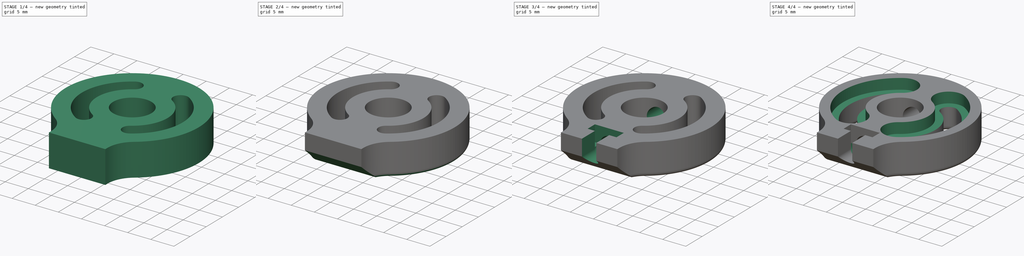
[diagram: build sequence overview — one tinted view per stage of 4, left to right]
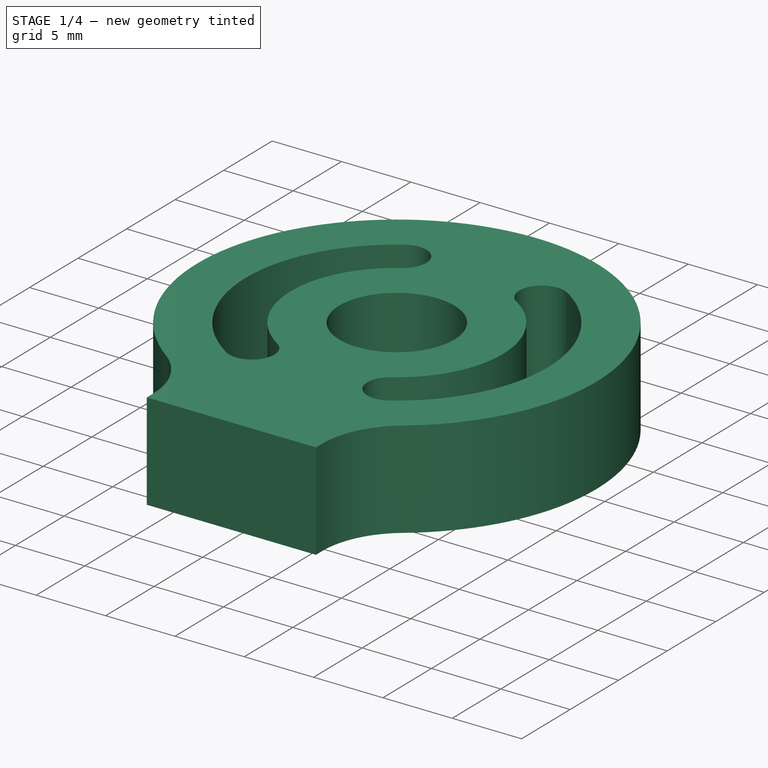
[diagram: stage 1 of 4 — iso view after this stage's code; geometry added in this stage tinted green]
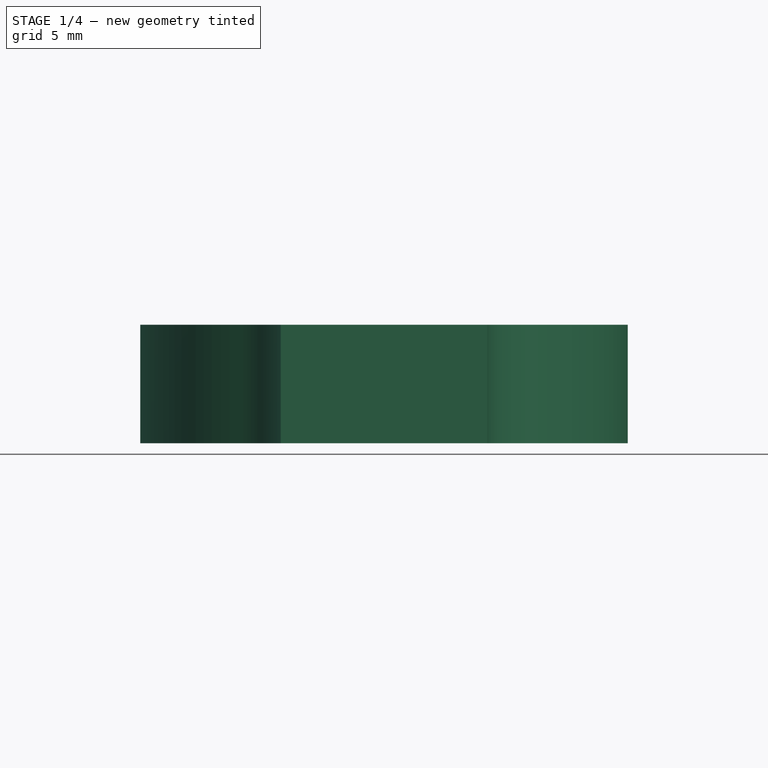
[diagram: stage 1 of 4 — front view after this stage's code; geometry added in this stage tinted green]
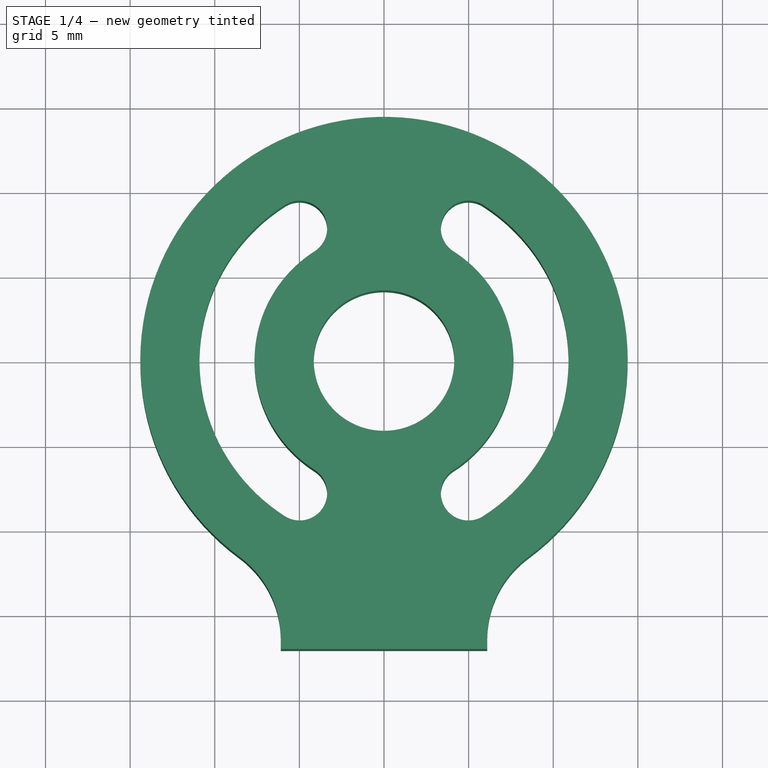
[diagram: stage 1 of 4 — top view after this stage's code; geometry added in this stage tinted green]
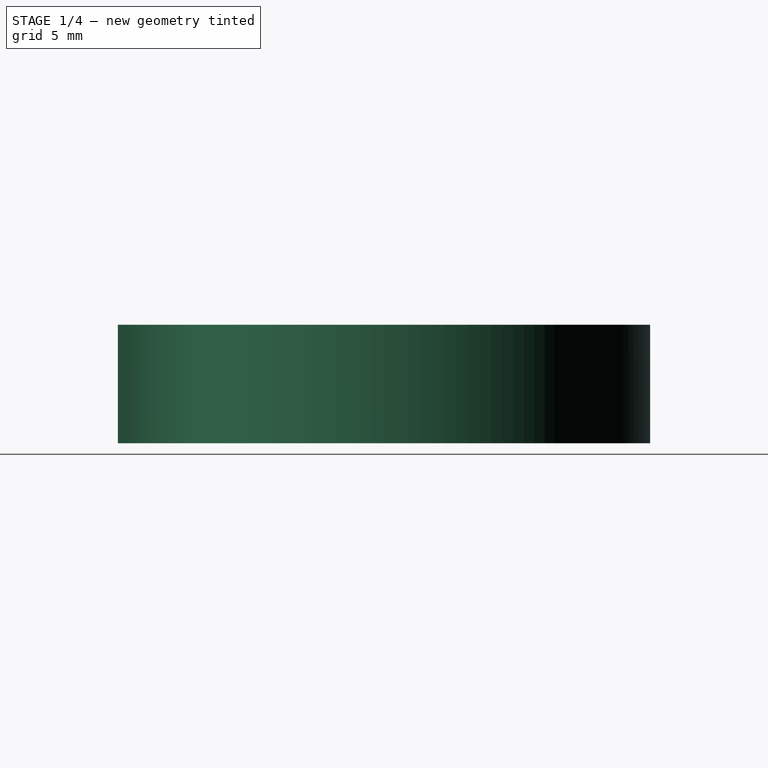
[diagram: stage 1 of 4 — right view after this stage's code; geometry added in this stage tinted green]
FCSTD DOCUMENT  (FreeCAD 0.16RUnknown)
Label: joint-head-screws.011.1
License: All rights reserved
LicenseURL: http://en.wikipedia.org/wiki/All_rights_reserved
objects: Sketcher::SketchObject×7, PartDesign::Pocket×6, Part::Fillet×2, Part::Extrusion×1
note: 22 computed .brp shape members not serialized (recipe doc carries the construction recipe); baked Part::Feature solids carry a one-line shape summary decoded from their .brp

FEATURE [Sketcher::SketchObject] Sketch
  sketch-geometry (29):
    g0: Circle CenterX=0 CenterY=0 CenterZ=0 NormalX=0 NormalY=0 NormalZ=1 Radius=4.15
    g1: ArcOfCircle CenterX=0 CenterY=0 CenterZ=0 NormalX=0 NormalY=0 NormalZ=1 Radius=7.65 StartAngle=2.13803 EndAngle=4.14516
    g2: ArcOfCircle CenterX=0 CenterY=0 CenterZ=0 NormalX=0 NormalY=0 NormalZ=1 Radius=10.9 StartAngle=2.13803 EndAngle=4.14516
    g3: ArcOfCircle CenterX=0 CenterY=0 CenterZ=0 NormalX=0 NormalY=0 NormalZ=1 Radius=7.65 StartAngle=5.27962 EndAngle=7.28675
    g4: ArcOfCircle CenterX=0 CenterY=0 CenterZ=0 NormalX=0 NormalY=0 NormalZ=1 Radius=10.9 StartAngle=5.27962 EndAngle=7.28675
    g5: ArcOfCircle [constr] CenterX=0 CenterY=0 CenterZ=0 NormalX=0 NormalY=0 NormalZ=1 Radius=7.65 StartAngle=1.00356 EndAngle=2.13803
    g6: ArcOfCircle [constr] CenterX=0 CenterY=0 CenterZ=0 NormalX=0 NormalY=0 NormalZ=1 Radius=10.9 StartAngle=1.00356 EndAngle=2.13803
    g7: ArcOfCircle [constr] CenterX=0 CenterY=0 CenterZ=0 NormalX=0 NormalY=0 NormalZ=1 Radius=7.65 StartAngle=4.14516 EndAngle=5.27962
    g8: ArcOfCircle [constr] CenterX=0 CenterY=0 CenterZ=0 NormalX=0 NormalY=0 NormalZ=1 Radius=10.9 StartAngle=4.14516 EndAngle=5.27962
    g9: ArcOfCircle CenterX=0 CenterY=0 CenterZ=0 NormalX=0 NormalY=0 NormalZ=1 Radius=14.4 StartAngle=5.14982 EndAngle=10.5581
    g10: LineSegment [constr] StartX=-5.85657 StartY=-9.19297 StartZ=0 EndX=-4.11034 EndY=-6.45194 EndZ=0
    g11: LineSegment [constr] StartX=-4.11034 StartY=-6.45194 StartZ=0 EndX=0 EndY=0 EndZ=0
    g12: LineSegment [constr] StartX=0 StartY=0 StartZ=0 EndX=4.11034 EndY=6.45194 EndZ=0
    g13: LineSegment [constr] StartX=4.11034 StartY=6.45194 StartZ=0 EndX=5.85657 EndY=9.19297 EndZ=0
    g14: LineSegment [constr] StartX=-7.73711 StartY=12.1448 StartZ=0 EndX=-5.85657 EndY=9.19297 EndZ=0
    g15: LineSegment [constr] StartX=-5.85657 StartY=9.19297 StartZ=0 EndX=-4.11034 EndY=6.45194 EndZ=0
    g16: LineSegment [constr] StartX=-4.11034 StartY=6.45194 StartZ=0 EndX=-2.22979 EndY=3.50007 EndZ=0
    g17: LineSegment [constr] StartX=-2.22979 StartY=3.50007 StartZ=0 EndX=0 EndY=0 EndZ=0
    g18: LineSegment [constr] StartX=0 StartY=0 StartZ=0 EndX=4.11034 EndY=-6.45194 EndZ=0
    g19: LineSegment [constr] StartX=4.11034 StartY=-6.45194 StartZ=0 EndX=5.85657 EndY=-9.19297 EndZ=0
    g20: LineSegment [constr] StartX=-5.85657 StartY=-9.19297 StartZ=0 EndX=5.85657 EndY=-9.19297 EndZ=0
    g21: LineSegment StartX=-6.1 StartY=-17.0442 StartZ=0 EndX=6.1 EndY=-17.0442 EndZ=0
    g22: LineSegment StartX=6.1 StartY=-17.0442 StartZ=0 EndX=6.1 EndY=-13.0442 EndZ=0
    g23: LineSegment [constr] StartX=6.1 StartY=-13.0442 StartZ=0 EndX=-6.1 EndY=-13.0442 EndZ=0
    g24: LineSegment StartX=-6.1 StartY=-13.0442 StartZ=0 EndX=-6.1 EndY=-17.0442 EndZ=0
    g25: ArcOfCircle CenterX=-4.98345 CenterY=-7.82246 CenterZ=0 NormalX=0 NormalY=0 NormalZ=1 Radius=1.625 StartAngle=4.14516 EndAngle=7.28675
    g26: ArcOfCircle CenterX=4.98345 CenterY=-7.82246 CenterZ=0 NormalX=0 NormalY=0 NormalZ=1 Radius=1.625 StartAngle=2.13803 EndAngle=5.27962
    g27: ArcOfCircle CenterX=-4.98345 CenterY=7.82246 CenterZ=0 NormalX=0 NormalY=0 NormalZ=1 Radius=1.625 StartAngle=5.27962 EndAngle=8.42121
    g28: ArcOfCircle CenterX=4.98345 CenterY=7.82246 CenterZ=0 NormalX=0 NormalY=0 NormalZ=1 Radius=1.625 StartAngle=1.00356 EndAngle=4.14516
  constraints (80):
    c: Coincident(g0,g-1)
    c: Radius(g0) = 4.15
    c: Coincident(g0,g1)
    c: Coincident(g0,g2)
    c: Coincident(g0,g3)
    c: Coincident(g0,g4)
    c: Coincident(g0,g5)
    c: Coincident(g0,g6)
    c: Coincident(g0,g7)
    c: Coincident(g0,g8)
    c: Coincident(g1,g5)
    c: Coincident(g2,g6)
    c: Coincident(g4,g6)
    c: Coincident(g3,g5)
    c: Coincident(g3,g7)
    c: Coincident(g1,g7)
    c: Coincident(g2,g8)
    c: Coincident(g4,g8)
    c: Coincident(g0,g9)
    c: Coincident(g10,g11)
    c: Coincident(g11,g12)
    c: Coincident(g12,g13)
    c: Coincident(g14,g15)
    c: Coincident(g15,g16)
    c: Coincident(g16,g17)
    c: Coincident(g17,g18)
    c: Coincident(g18,g19)
    c: Coincident(g0,g11)
    c: Coincident(g0,g17)
    c: PointOnObject(g16,g0)
    c: PointOnObject(g14,g9)
    c: Coincident(g2,g14)
    c: Coincident(g1,g15)
    c: Coincident(g3,g12)
    c: Coincident(g4,g13)
    c: Coincident(g1,g10)
    c: Coincident(g2,g10)
    c: Coincident(g3,g18)
    c: Coincident(g4,g19)
    c: Parallel(g10,g11)
    c: Parallel(g11,g12)
    c: Parallel(g12,g13)
    c: Parallel(g14,g15)
    c: Parallel(g15,g16)
    c: Parallel(g16,g17)
    c: Parallel(g17,g18)
    c: Parallel(g18,g19)
    c: Horizontal(g20)
    c: Coincident(g4,g20)
    c: Coincident(g2,g20)
    c: Angle(g12,g17) = 1.13446
    c: Equal(g16,g14)
    c: Distance(g15) = 3.25
    c: Distance(g14) = 3.5
    c: Coincident(g21,g22)
    c: Coincident(g24,g21)
    c: Horizontal(g21)
    c: Horizontal(g23)
    c: Vertical(g22)
    c: Vertical(g24)
    c: DistanceY(g22,g23) = 4
    c: DistanceX(g21,g21) = 12.2
    c: PointOnObject(g24,g9)
    c: PointOnObject(g23,g9)
    c: Coincident(g9,g22)
    c: Coincident(g9,g23)
    c: Coincident(g9,g24)
    c: Coincident(g9,g23)
    c: Coincident(g4,g28)
    c: Coincident(g3,g28)
    c: Coincident(g1,g27)
    c: Coincident(g2,g27)
    c: PointOnObject(g27,g15)
    c: PointOnObject(g28,g13)
    c: Coincident(g1,g25)
    c: Coincident(g2,g25)
    c: PointOnObject(g25,g10)
    c: Coincident(g3,g26)
    c: Coincident(g4,g26)
    c: PointOnObject(g26,g19)
FEATURE [Part::Extrusion] Extrude
  Base = -> Sketch
  Dir = (0,0,7)
  Solid = true
FEATURE [Part::Fillet] Fillet
  Base = -> Extrude
  Edges = 2 edges r=6: [Edge1,Edge2]
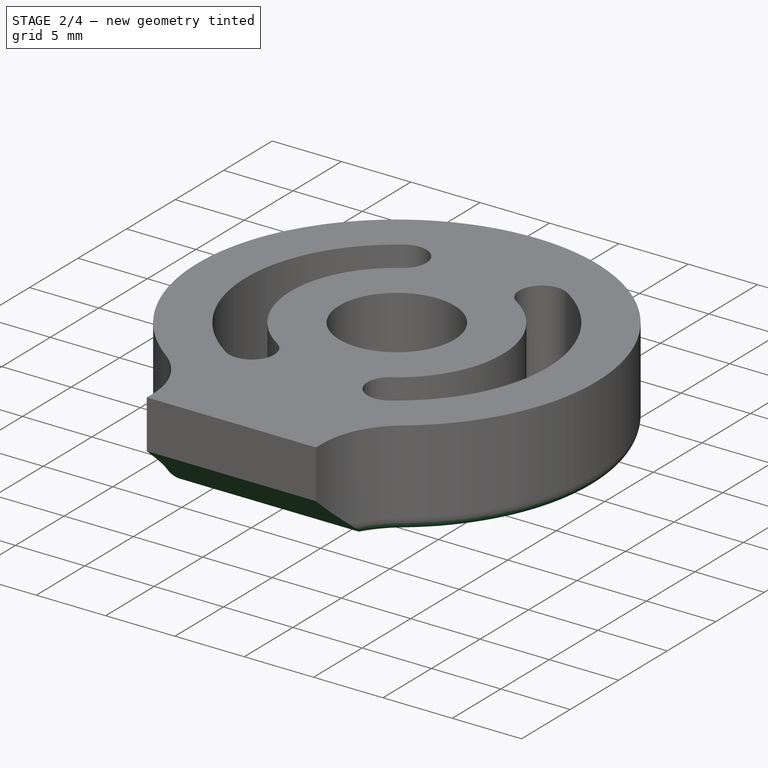
[diagram: stage 2 of 4 — iso view after this stage's code; geometry added in this stage tinted green]
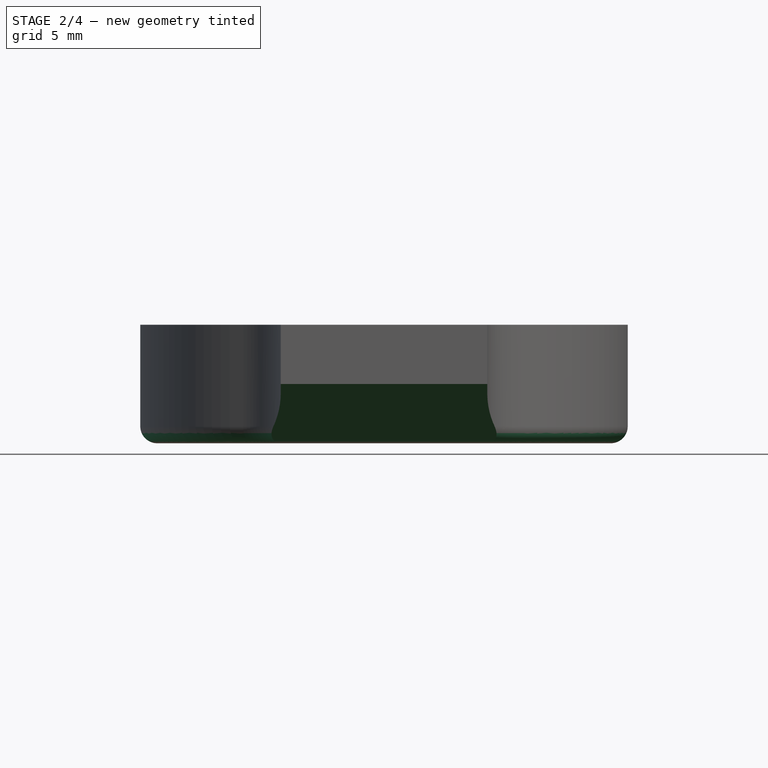
[diagram: stage 2 of 4 — front view after this stage's code; geometry added in this stage tinted green]
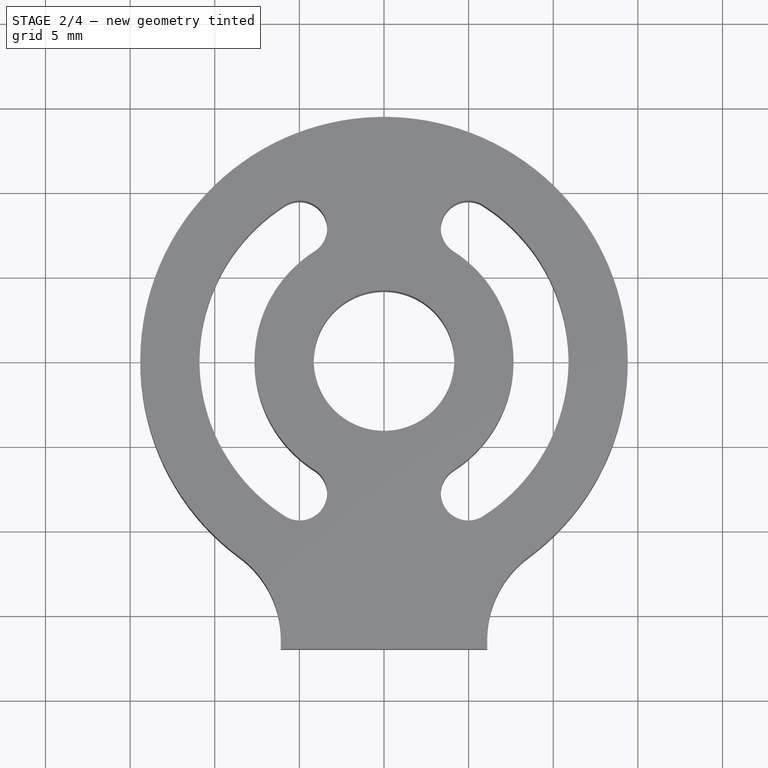
[diagram: stage 2 of 4 — top view after this stage's code; geometry added in this stage tinted green]
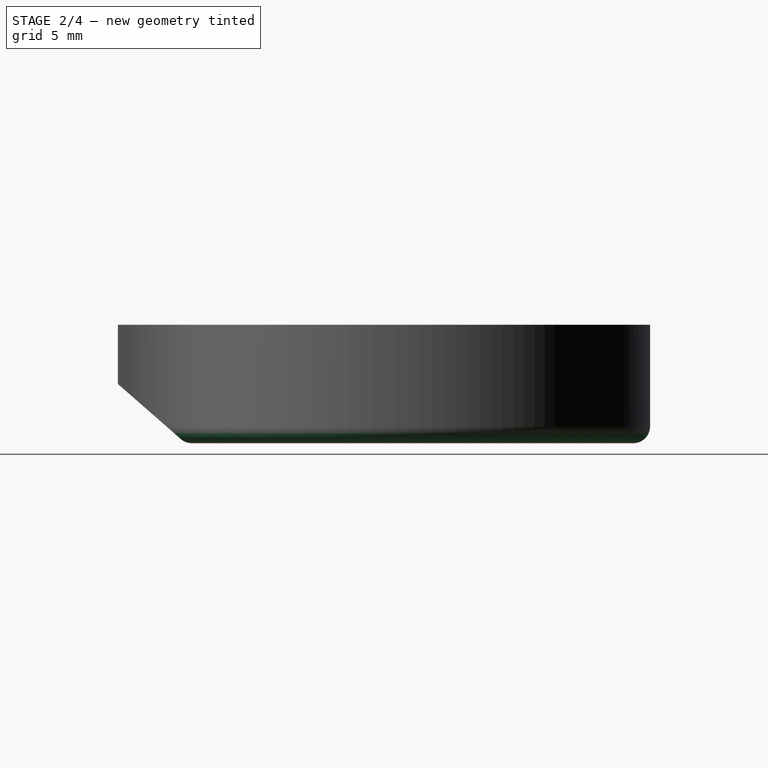
[diagram: stage 2 of 4 — right view after this stage's code; geometry added in this stage tinted green]
FEATURE [Sketcher::SketchObject] Sketch001
  ExternalGeometry = -> [Fillet]
  Placement = pos=(6.1,0,0) rot=(0.57735,0.57735,0.57735;2.0944rad)
  Support = -> Fillet [Face6]
  sketch-geometry (4):
    g0: LineSegment [constr] StartX=-17.0442 StartY=7 StartZ=0 EndX=-17.0442 EndY=3.5 EndZ=0
    g1: LineSegment StartX=-17.0442 StartY=3.5 StartZ=0 EndX=-17.0442 EndY=0 EndZ=0
    g2: LineSegment StartX=-17.0442 StartY=0 StartZ=0 EndX=-13.0442 EndY=0 EndZ=0
    g3: LineSegment StartX=-13.0442 StartY=0 StartZ=0 EndX=-17.0442 EndY=3.5 EndZ=0
  constraints (11):
    c: Vertical(g0)
    c: Coincident(g0,g1)
    c: Vertical(g1)
    c: Coincident(g1,g2)
    c: Horizontal(g2)
    c: Coincident(g2,g3)
    c: Coincident(g0,g3)
    c: Equal(g0,g1)
    c: Coincident(g0,g-3)
    c: Coincident(g1,g-3)
    c: DistanceX(g2,g2) = 4
FEATURE [PartDesign::Pocket] Pocket
  Length = 5
  Midplane = true
  Sketch = -> Sketch001
  Type = 1
FEATURE [Part::Fillet] Fillet001
  Base = -> Pocket
  Edges = 13 edges r=1: [Edge1,Edge5,Edge6,Edge7,Edge8,Edge9,Edge10,Edge11,Edge12,Edge13,Edge14,Edge15,Edge16]
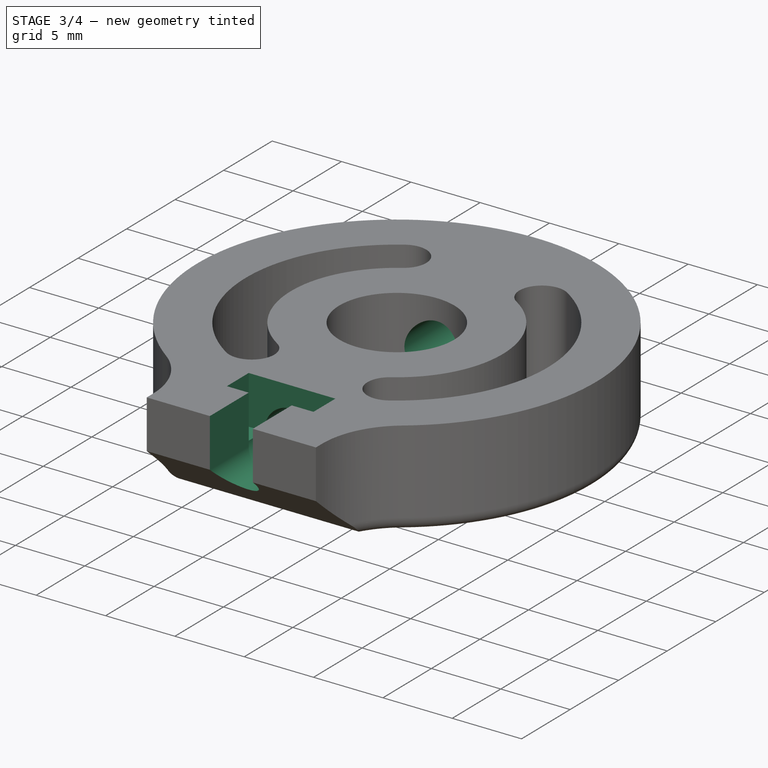
[diagram: stage 3 of 4 — iso view after this stage's code; geometry added in this stage tinted green]
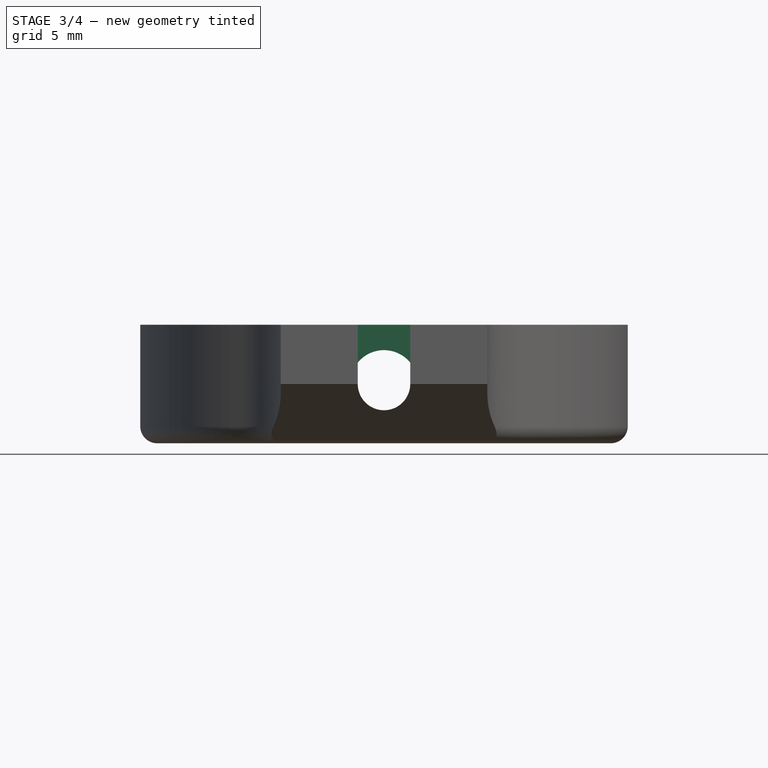
[diagram: stage 3 of 4 — front view after this stage's code; geometry added in this stage tinted green]
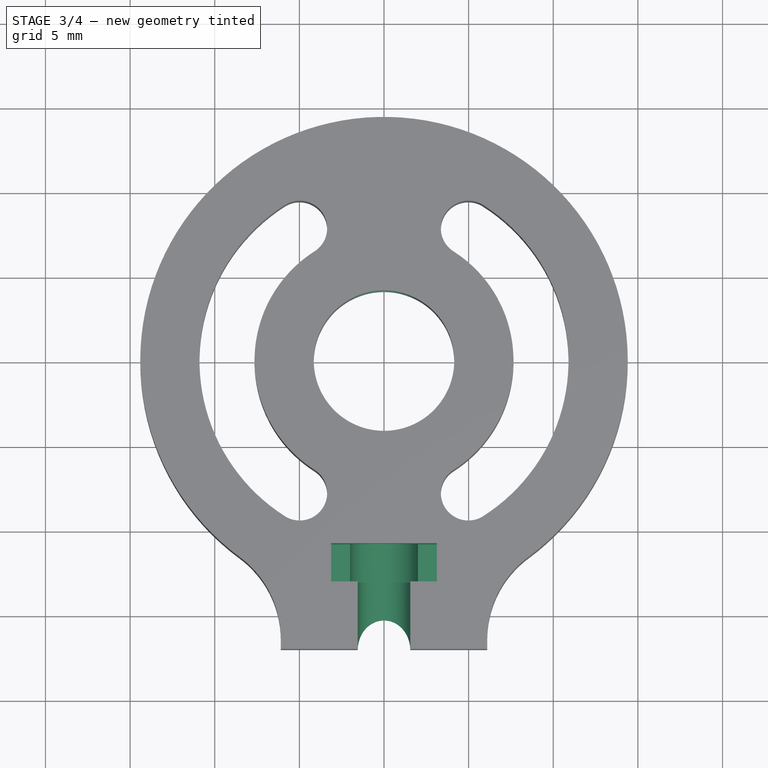
[diagram: stage 3 of 4 — top view after this stage's code; geometry added in this stage tinted green]
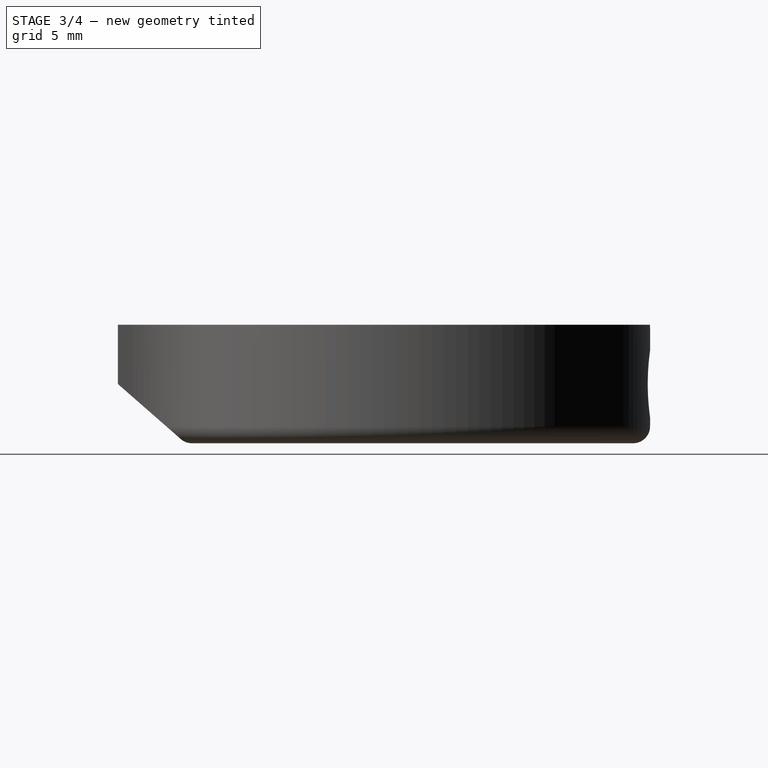
[diagram: stage 3 of 4 — right view after this stage's code; geometry added in this stage tinted green]
FEATURE [Sketcher::SketchObject] Sketch002
  ExternalGeometry = -> [Fillet001]
  Placement = pos=(0,-17.0442,0) rot=(1,0,0;1.5708rad)
  Support = -> Fillet001 [Face12]
  sketch-geometry (1):
    g0: Circle CenterX=0 CenterY=3.5 CenterZ=0 NormalX=0 NormalY=0 NormalZ=1 Radius=1.55
  constraints (3):
    c: PointOnObject(g0,g-3)
    c: PointOnObject(g0,g-2)
    c: Radius(g0) = 1.55
FEATURE [PartDesign::Pocket] Pocket001
  Length = 4
  Sketch = -> Sketch002
  Type = 0
FEATURE [Sketcher::SketchObject] Sketch003
  ExternalGeometry = -> [Pocket001]
  Placement = pos=(0,-13.0442,0) rot=(1,0,0;1.5708rad)
  Support = -> Pocket001 [Face33]
  sketch-geometry (1):
    g0: Circle CenterX=0 CenterY=3.5 CenterZ=0 NormalX=0 NormalY=0 NormalZ=1 Radius=2
  constraints (2):
    c: Coincident(g0,g-3)
    c: Radius(g0) = 2
FEATURE [PartDesign::Pocket] Pocket002
  Length = 5
  Sketch = -> Sketch003
  Type = 1
FEATURE [Sketcher::SketchObject] Sketch004
  ExternalGeometry = -> [Pocket002]
  Placement = pos=(0,0,7) rot=(0,0,1;0rad)
  Support = -> Pocket002 [Face4]
  sketch-geometry (10):
    g0: LineSegment StartX=-3.125 StartY=-10.7942 StartZ=0 EndX=3.125 EndY=-10.7942 EndZ=0
    g1: LineSegment StartX=3.125 StartY=-10.7942 StartZ=0 EndX=3.125 EndY=-13.0442 EndZ=0
    g2: LineSegment StartX=3.125 StartY=-13.0442 StartZ=0 EndX=1.55 EndY=-13.0442 EndZ=0
    g3: LineSegment StartX=1.55 StartY=-13.0442 StartZ=0 EndX=1.55 EndY=-17.0442 EndZ=0
    g4: LineSegment StartX=1.55 StartY=-17.0442 StartZ=0 EndX=-1.55 EndY=-17.0442 EndZ=0
    g5: LineSegment StartX=-1.55 StartY=-17.0442 StartZ=0 EndX=-1.55 EndY=-13.0442 EndZ=0
    g6: LineSegment StartX=-1.55 StartY=-13.0442 StartZ=0 EndX=-3.125 EndY=-13.0442 EndZ=0
    g7: LineSegment StartX=-3.125 StartY=-13.0442 StartZ=0 EndX=-3.125 EndY=-10.7942 EndZ=0
    g8: LineSegment [constr] StartX=-3.125 StartY=-13.0442 StartZ=0 EndX=0 EndY=-11.9192 EndZ=0
    g9: LineSegment [constr] StartX=0 StartY=-11.9192 StartZ=0 EndX=3.125 EndY=-10.7942 EndZ=0
  constraints (29):
    c: Horizontal(g0)
    c: Coincident(g0,g1)
    c: Vertical(g1)
    c: Coincident(g1,g2)
    c: Horizontal(g2)
    c: Coincident(g2,g3)
    c: Vertical(g3)
    c: Coincident(g3,g4)
    c: Horizontal(g4)
    c: Coincident(g4,g5)
    c: Vertical(g5)
    c: Coincident(g5,g6)
    c: Horizontal(g6)
    c: Coincident(g6,g7)
    c: Vertical(g7)
    c: Coincident(g0,g7)
    c: Equal(g6,g2)
    c: DistanceX(g4,g4) = 3.1
    c: DistanceX(g0,g0) = 6.25
    c: DistanceY(g1,g1) = 2.25
    c: PointOnObject(g4,g-3)
    c: DistanceY(g5,g5) = 4
    c: Equal(g5,g3)
    c: Coincident(g8,g9)
    c: Coincident(g6,g8)
    c: Coincident(g0,g9)
    c: PointOnObject(g8,g-2)
    c: Equal(g8,g9)
    c: Parallel(g8,g9)
FEATURE [PartDesign::Pocket] Pocket003
  Length = 3.5
  Sketch = -> Sketch004
  Type = 0
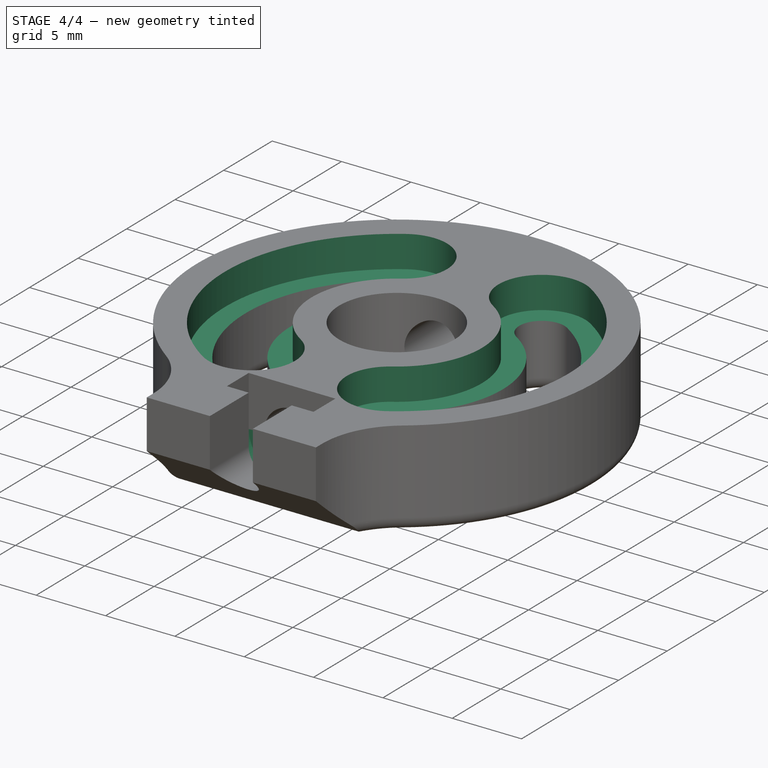
[diagram: stage 4 of 4 — iso view after this stage's code; geometry added in this stage tinted green]
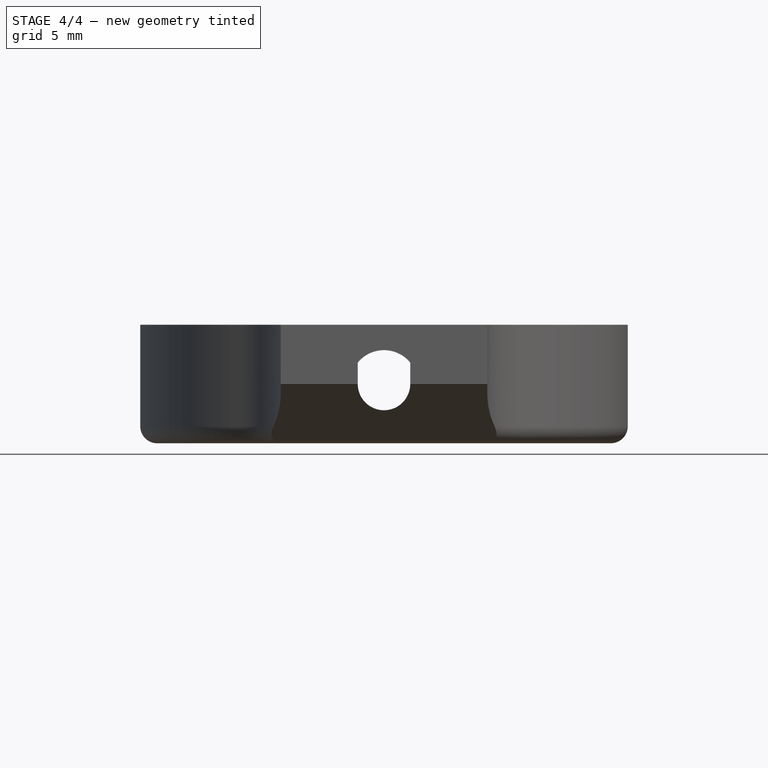
[diagram: stage 4 of 4 — front view after this stage's code; geometry added in this stage tinted green]
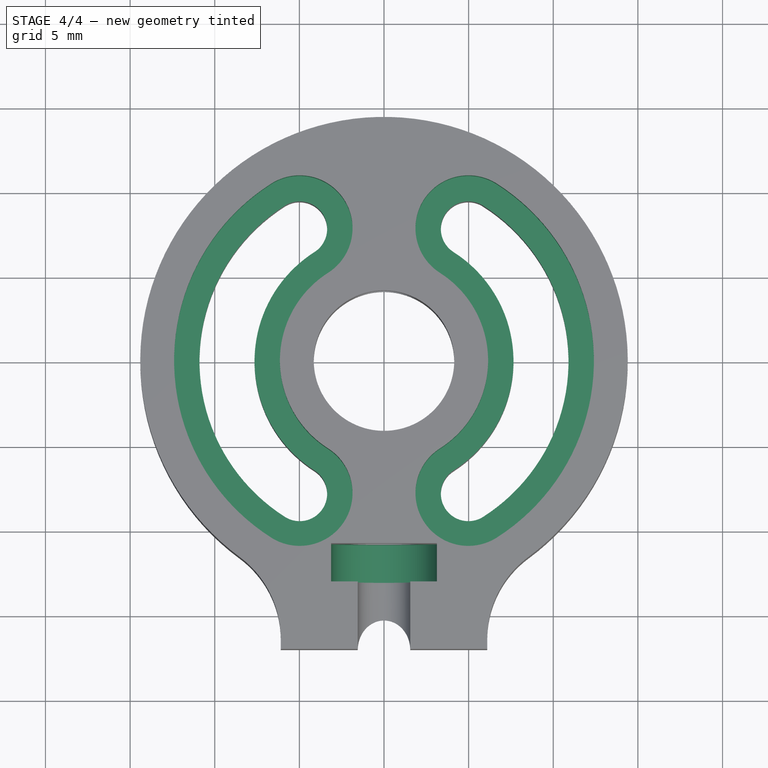
[diagram: stage 4 of 4 — top view after this stage's code; geometry added in this stage tinted green]
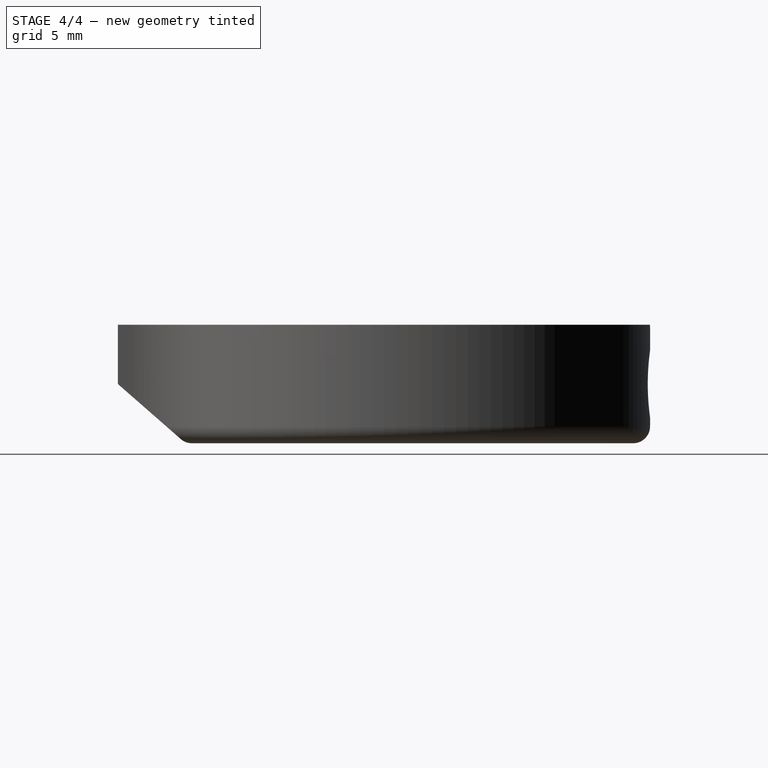
[diagram: stage 4 of 4 — right view after this stage's code; geometry added in this stage tinted green]
FEATURE [Sketcher::SketchObject] Sketch005
  ExternalGeometry = -> [Pocket003]
  Placement = pos=(0,-10.7942,0) rot=(1,0,0;1.5708rad)
  Support = -> Pocket003 [Face16]
  sketch-geometry (2):
    g0: LineSegment StartX=-3.125 StartY=3.5 StartZ=0 EndX=3.125 EndY=3.5 EndZ=0
    g1: ArcOfCircle CenterX=0 CenterY=3.5 CenterZ=0 NormalX=0 NormalY=0 NormalZ=1 Radius=3.125 StartAngle=3.14159 EndAngle=6.28319
  constraints (6):
    c: Horizontal(g0)
    c: Coincident(g0,g1)
    c: Coincident(g0,g-5)
    c: Coincident(g0,g1)
    c: Coincident(g0,g-3)
    c: Coincident(g1,g-4)
FEATURE [PartDesign::Pocket] Pocket004
  Length = 0
  Sketch = -> Sketch005
  Type = 3
  UpToFace = -> Pocket003 [Face18]
FEATURE [Sketcher::SketchObject] Sketch006
  ExternalGeometry = -> [Pocket004]
  Placement = pos=(0,0,7) rot=(0,0,1;0rad)
  Support = -> Pocket004 [Face4]
  sketch-geometry (20):
    g0: LineSegment [constr] StartX=-6.66252 StartY=10.4581 StartZ=0 EndX=-5.85657 EndY=9.19297 EndZ=0
    g1: LineSegment [constr] StartX=-5.85657 StartY=9.19297 StartZ=0 EndX=-4.11034 EndY=6.45194 EndZ=0
    g2: LineSegment [constr] StartX=-4.11034 StartY=6.45194 StartZ=0 EndX=-3.30439 EndY=5.18686 EndZ=0
    g3: LineSegment [constr] StartX=3.30439 StartY=5.18686 StartZ=0 EndX=4.11034 EndY=6.45194 EndZ=0
    g4: LineSegment [constr] StartX=4.11034 StartY=6.45194 StartZ=0 EndX=5.85657 EndY=9.19297 EndZ=0
    g5: LineSegment [constr] StartX=5.85657 StartY=9.19297 StartZ=0 EndX=6.66252 EndY=10.4581 EndZ=0
    g6: LineSegment [constr] StartX=-6.66252 StartY=-10.4581 StartZ=0 EndX=-5.85657 EndY=-9.19297 EndZ=0
    g7: LineSegment [constr] StartX=-5.85657 StartY=-9.19297 StartZ=0 EndX=-4.11034 EndY=-6.45194 EndZ=0
    g8: LineSegment [constr] StartX=-4.11034 StartY=-6.45194 StartZ=0 EndX=-3.30439 EndY=-5.18686 EndZ=0
    g9: LineSegment [constr] StartX=3.30439 StartY=-5.18686 StartZ=0 EndX=4.11034 EndY=-6.45194 EndZ=0
    g10: LineSegment [constr] StartX=4.11034 StartY=-6.45194 StartZ=0 EndX=5.85657 EndY=-9.19297 EndZ=0
    g11: LineSegment [constr] StartX=5.85657 StartY=-9.19297 StartZ=0 EndX=6.66252 EndY=-10.4581 EndZ=0
    g12: ArcOfCircle CenterX=-4.98345 CenterY=7.82246 CenterZ=0 NormalX=0 NormalY=0 NormalZ=1 Radius=3.125 StartAngle=5.27962 EndAngle=8.42121
    g13: ArcOfCircle CenterX=4.98345 CenterY=7.82246 CenterZ=0 NormalX=0 NormalY=0 NormalZ=1 Radius=3.125 StartAngle=1.00356 EndAngle=4.14516
    g14: ArcOfCircle CenterX=-4.98345 CenterY=-7.82246 CenterZ=0 NormalX=0 NormalY=0 NormalZ=1 Radius=3.125 StartAngle=4.14516 EndAngle=7.28675
    g15: ArcOfCircle CenterX=4.98345 CenterY=-7.82246 CenterZ=0 NormalX=0 NormalY=0 NormalZ=1 Radius=3.125 StartAngle=2.13803 EndAngle=5.27962
    g16: ArcOfCircle CenterX=0 CenterY=0 CenterZ=0 NormalX=0 NormalY=0 NormalZ=1 Radius=6.15 StartAngle=2.13803 EndAngle=4.14516
    g17: ArcOfCircle CenterX=0 CenterY=0 CenterZ=0 NormalX=0 NormalY=0 NormalZ=1 Radius=12.4 StartAngle=2.13803 EndAngle=4.14516
    g18: ArcOfCircle CenterX=0 CenterY=0 CenterZ=0 NormalX=0 NormalY=0 NormalZ=1 Radius=6.15 StartAngle=5.27962 EndAngle=7.28675
    g19: ArcOfCircle CenterX=0 CenterY=0 CenterZ=0 NormalX=0 NormalY=0 NormalZ=1 Radius=12.4 StartAngle=5.27962 EndAngle=7.28675
  constraints (52):
    c: Coincident(g0,g1)
    c: Coincident(g1,g2)
    c: Coincident(g3,g4)
    c: Coincident(g4,g5)
    c: Coincident(g6,g7)
    c: Coincident(g7,g8)
    c: Coincident(g9,g10)
    c: Coincident(g10,g11)
    c: Coincident(g10,g-5)
    c: Coincident(g9,g-5)
    c: Coincident(g7,g-4)
    c: Coincident(g6,g-4)
    c: Coincident(g1,g-3)
    c: Coincident(g0,g-3)
    c: Coincident(g3,g-6)
    c: Coincident(g4,g-6)
    c: Parallel(g0,g1)
    c: Parallel(g1,g2)
    c: Parallel(g4,g3)
    c: Parallel(g3,g5)
    c: Parallel(g6,g7)
    c: Parallel(g7,g8)
    c: Parallel(g11,g10)
    c: Parallel(g10,g9)
    c: Equal(g0,g2)
    c: Equal(g3,g5)
    c: Equal(g0,g5)
    c: Coincident(g16,g17)
    c: Coincident(g16,g18)
    c: Coincident(g16,g19)
    c: Coincident(g16,g-1)
    c: Coincident(g2,g12)
    c: Coincident(g2,g16)
    c: Coincident(g0,g12)
    c: Coincident(g0,g17)
    c: Coincident(g6,g14)
    c: Coincident(g6,g17)
    c: Coincident(g8,g14)
    c: Coincident(g8,g16)
    c: Coincident(g9,g15)
    c: Coincident(g9,g18)
    c: Coincident(g11,g15)
    c: Coincident(g11,g19)
    c: Coincident(g3,g13)
    c: Coincident(g3,g18)
    c: Coincident(g5,g13)
    c: Coincident(g5,g19)
    c: PointOnObject(g13,g4)
    c: PointOnObject(g12,g1)
    c: PointOnObject(g14,g7)
    c: PointOnObject(g15,g10)
    c: Distance(g0,g2) = 6.25
FEATURE [PartDesign::Pocket] Pocket005
  Length = 2.3
  Sketch = -> Sketch006
  Type = 0
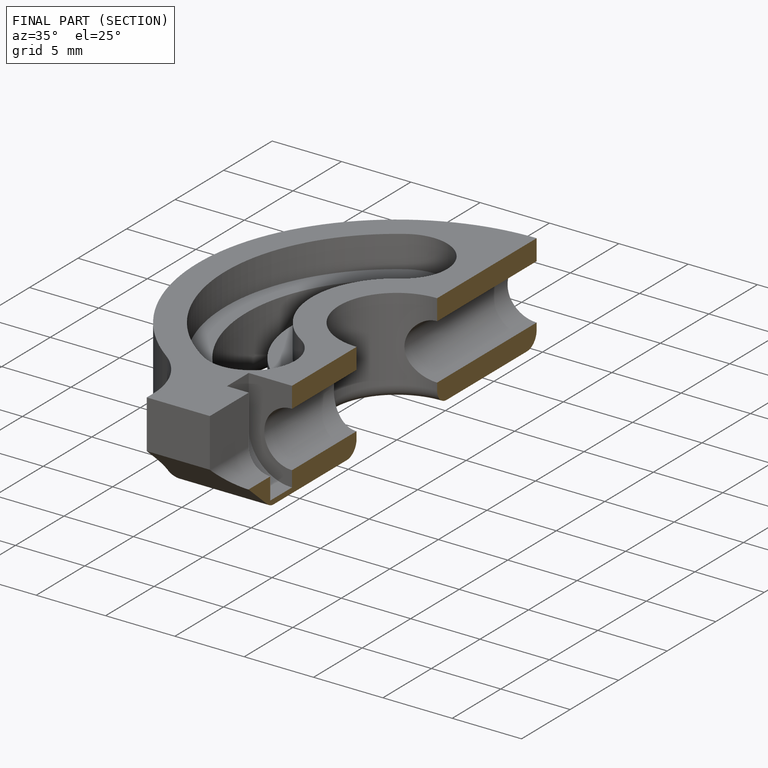
[diagram: finished part — half-section view (interior)]
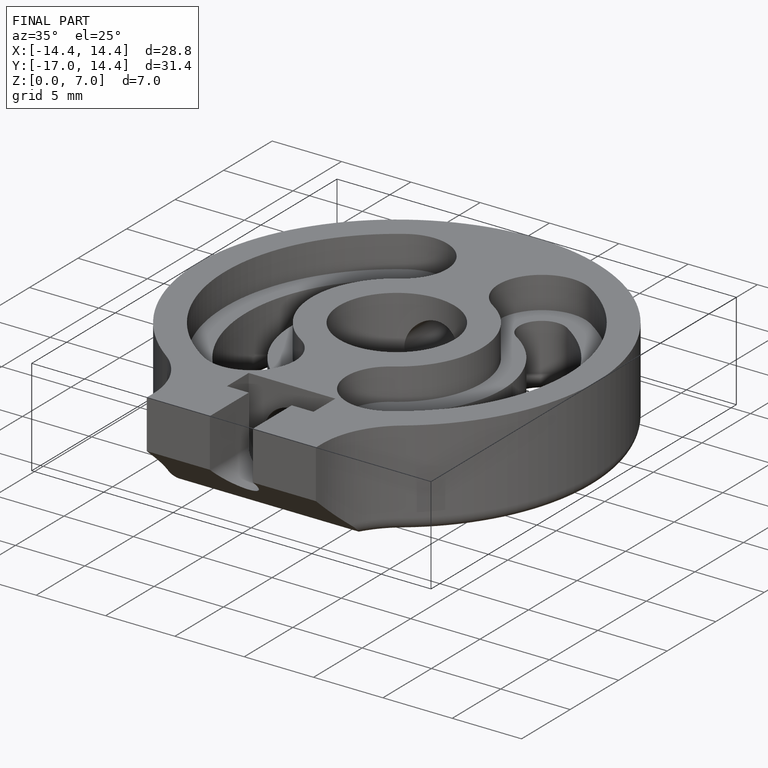
[diagram: finished part — iso view with bounding-box wireframe]
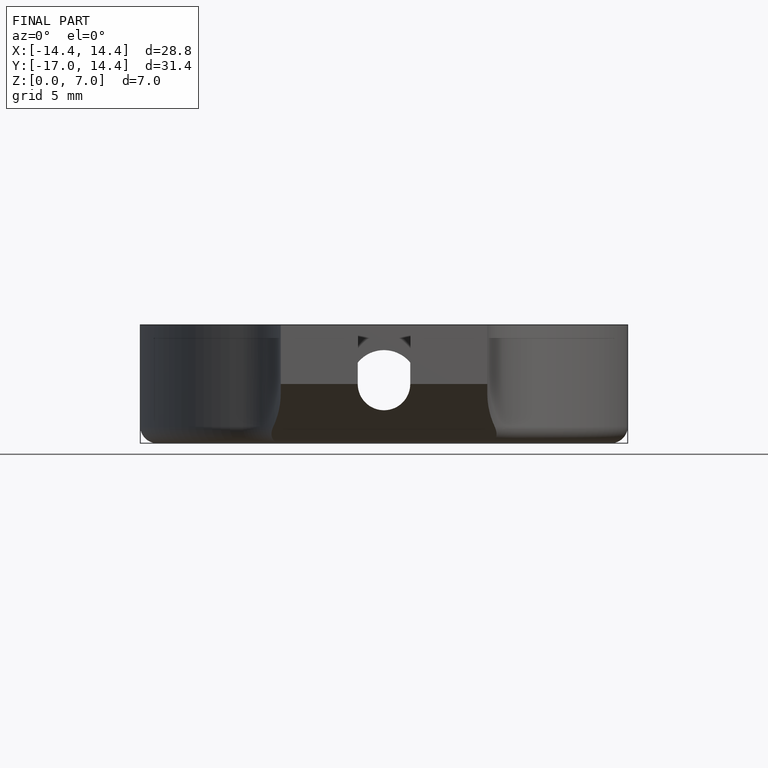
[diagram: finished part — front view with bounding-box wireframe]
